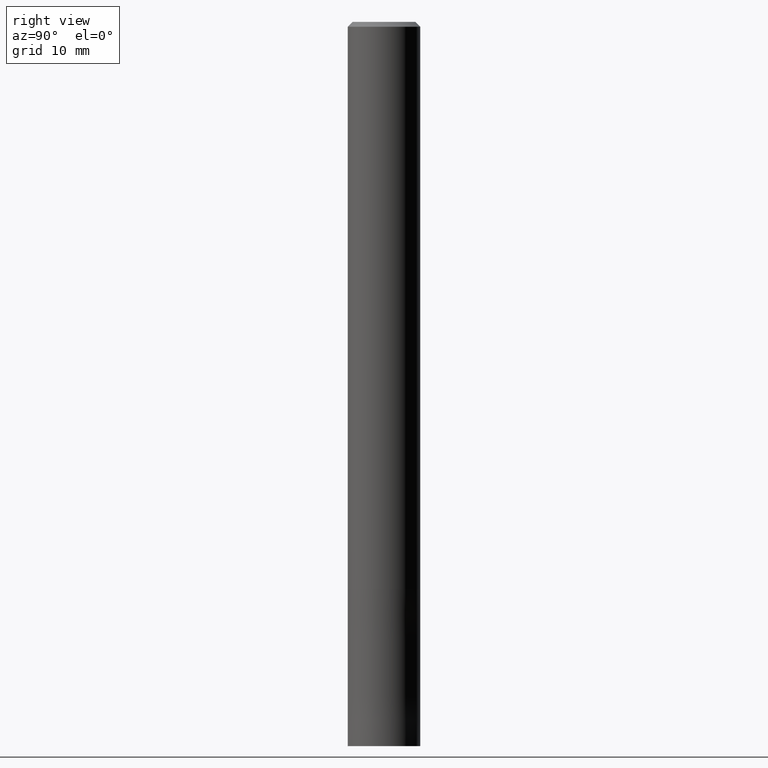
[diagram: clean part render]
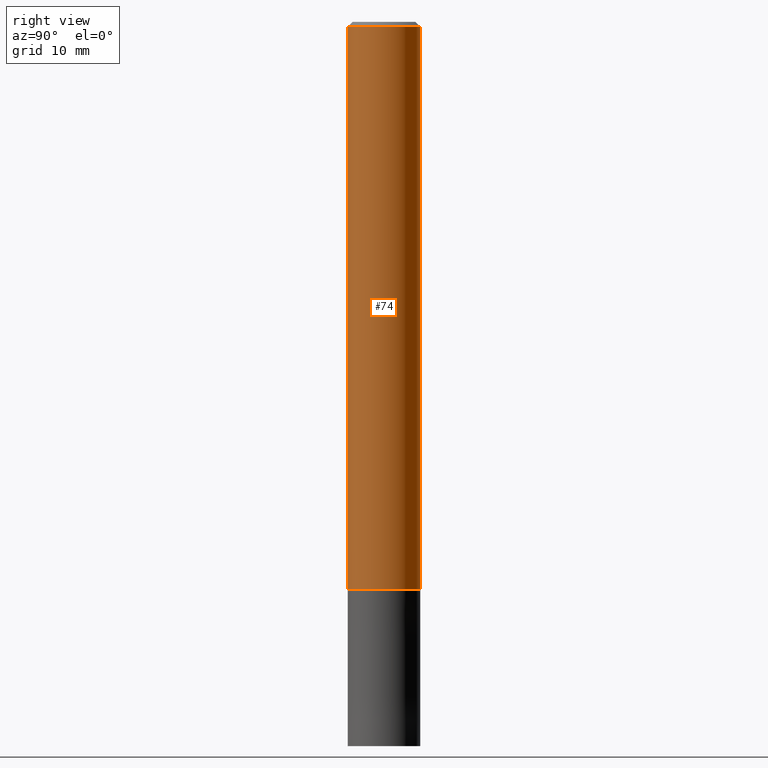
[diagram: same view with one face highlighted and labeled with its STEP entity id]
A machine part, right view. The second image highlights one B-rep face of the part: STEP entity #74.
In plain terms, the highlighted cylindrical surface (edge-blend (fillet) strip) has radius 3 mm, axis along (-0, -0, 1).
Its self-contained STEP definition (entity closure, byte-faithful):
#70=VERTEX_POINT('',#159);
#74=ADVANCED_FACE('',(#163),#164,.T.);
#76=EDGE_CURVE('',#70,#82,#166,.T.);
#82=VERTEX_POINT('',#172);
#104=EDGE_CURVE('',#116,#82,#197,.T.);
#114=EDGE_CURVE('',#70,#128,#208,.T.);
#116=VERTEX_POINT('',#210);
#118=EDGE_CURVE('',#128,#116,#212,.T.);
#128=VERTEX_POINT('',#226);
#159=CARTESIAN_POINT('',(0.0,3.0,-0.399999999999999));
#163=FACE_OUTER_BOUND('',#255,.T.);
#164=CYLINDRICAL_SURFACE('',#256,3.0);
#166=CIRCLE('',#259,3.0);
#172=CARTESIAN_POINT('',(3.67381906146713E-016,-3.0,-0.399999999999999));
#197=LINE('',#297,#298);
#208=LINE('',#313,#314);
#210=CARTESIAN_POINT('',(3.67381906146713E-016,-3.0,-47.0));
#212=CIRCLE('',#319,3.0);
#226=CARTESIAN_POINT('',(0.0,3.0,-47.0));
#255=EDGE_LOOP('',(#358,#359,#360,#361));
#256=AXIS2_PLACEMENT_3D('',#362,#363,#364);
#259=AXIS2_PLACEMENT_3D('',#365,#366,#367);
#297=CARTESIAN_POINT('',(3.67381906146713E-016,-3.0,-23.7));
#298=VECTOR('',#397,1.0);
#313=CARTESIAN_POINT('',(-3.67381906146713E-016,3.0,-23.7));
#314=VECTOR('',#410,1.0);
#319=AXIS2_PLACEMENT_3D('',#411,#412,#413);
#358=ORIENTED_EDGE('',*,*,#114,.F.);
#359=ORIENTED_EDGE('',*,*,#76,.T.);
#360=ORIENTED_EDGE('',*,*,#104,.F.);
#361=ORIENTED_EDGE('',*,*,#118,.F.);
#362=CARTESIAN_POINT('',(0.0,0.0,-23.7));
#363=DIRECTION('',(-0.0,-0.0,1.0));
#364=DIRECTION('',(0.0,1.0,0.0));
#365=CARTESIAN_POINT('',(0.0,0.0,-0.399999999999999));
#366=DIRECTION('',(0.0,0.0,-1.0));
#367=DIRECTION('',(0.0,1.0,0.0));
#397=DIRECTION('',(-0.0,-0.0,1.0));
#410=DIRECTION('',(0.0,0.0,-1.0));
#411=CARTESIAN_POINT('',(0.0,0.0,-47.0));
#412=DIRECTION('',(0.0,0.0,-1.0));
#413=DIRECTION('',(0.0,1.0,0.0));